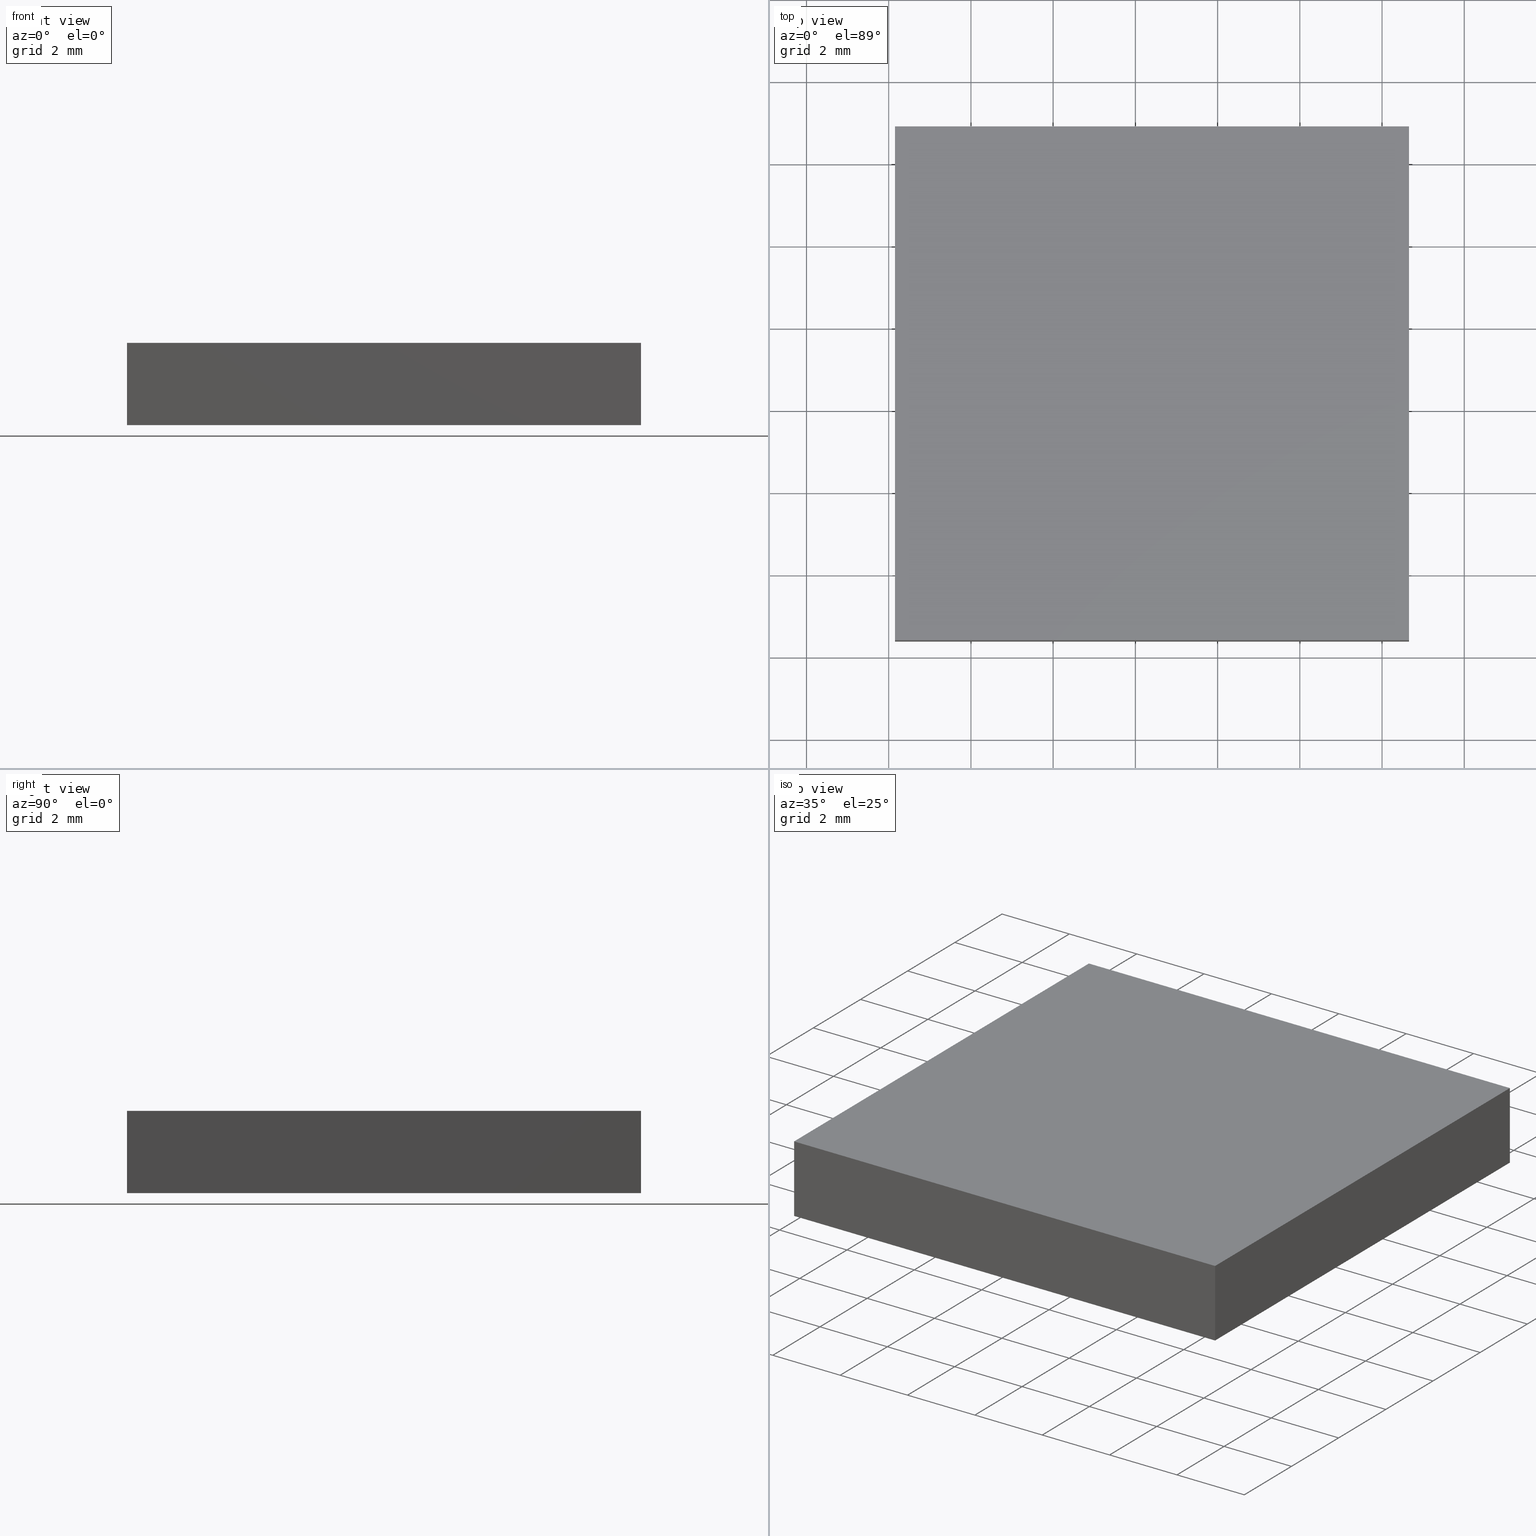
[diagram: canonical four-view strip — front | top / right | iso, engineering-drawing reading convention]
A machine part, canonical four-view strip (front | top / right | iso — engineering-drawing reading convention). The complete STEP part file that produces these views, byte-faithful:
ISO-10303-21;
HEADER;
FILE_DESCRIPTION (( 'STEP AP214' ),
    '1' );
FILE_NAME ('260004.STEP',
    '2019-07-16T02:54:51',
    ( '' ),
    ( '' ),
    'SwSTEP 2.0',
    'SolidWorks 2016',
    '' );
FILE_SCHEMA (( 'AUTOMOTIVE_DESIGN' ));
ENDSEC;

DATA;
#1 = SURFACE_STYLE_USAGE ( .BOTH. , #38 ) ;
#2 = SURFACE_STYLE_USAGE ( .BOTH. , #99 ) ;
#3 = FACE_OUTER_BOUND ( 'NONE', #49, .T. ) ;
#4 = APPLICATION_CONTEXT ( 'automotive_design' ) ;
#5 = ORIENTED_EDGE ( 'NONE', *, *, #198, .T. ) ;
#6 = DIRECTION ( 'NONE',  ( -0.0000000000000000000, -0.0000000000000000000, -1.000000000000000000 ) ) ;
#7 = VECTOR ( 'NONE', #50, 1000.000000000000000 ) ;
#8 = VERTEX_POINT ( 'NONE', #149 ) ;
#9 = PRESENTATION_LAYER_ASSIGNMENT (  '', '', ( #136 ) ) ;
#10 = EDGE_LOOP ( 'NONE', ( #196, #172, #161, #5 ) ) ;
#11 = EDGE_CURVE ( 'NONE', #33, #66, #171, .T. ) ;
#12 = CARTESIAN_POINT ( 'NONE',  ( 104.1543858644214700, 44.89658967450770900, 2.000000000000000000 ) ) ;
#13 = PLANE ( 'NONE',  #105 ) ;
#14 = PLANE ( 'NONE',  #37 ) ;
#15 = CARTESIAN_POINT ( 'NONE',  ( 116.6543858644214900, 44.89658967450770900, 2.000000000000000000 ) ) ;
#16 =( NAMED_UNIT ( * ) PLANE_ANGLE_UNIT ( ) SI_UNIT ( $, .RADIAN. ) );
#17 = ORIENTED_EDGE ( 'NONE', *, *, #26, .F. ) ;
#18 = DIRECTION ( 'NONE',  ( 0.0000000000000000000, 0.0000000000000000000, 1.000000000000000000 ) ) ;
#19 = UNCERTAINTY_MEASURE_WITH_UNIT (LENGTH_MEASURE( 1.000000000000000100E-005 ), #116, 'distance_accuracy_value', 'NONE');
#20 = DIRECTION ( 'NONE',  ( -1.000000000000000000, 0.0000000000000000000, -0.0000000000000000000 ) ) ;
#21 = CARTESIAN_POINT ( 'NONE',  ( 116.6543858644214900, 44.89658967450770900, 0.0000000000000000000 ) ) ;
#22 = ADVANCED_FACE ( 'NONE', ( #122 ), #13, .F. ) ;
#23 = ADVANCED_FACE ( 'NONE', ( #157 ), #14, .F. ) ;
#24 = PRESENTATION_STYLE_ASSIGNMENT (( #2 ) ) ;
#25 = ORIENTED_EDGE ( 'NONE', *, *, #74, .T. ) ;
#26 = EDGE_CURVE ( 'NONE', #60, #8, #41, .T. ) ;
#27 = EDGE_LOOP ( 'NONE', ( #186, #110, #17, #25 ) ) ;
#28 = EDGE_CURVE ( 'NONE', #104, #76, #94, .T. ) ;
#29 = COLOUR_RGB ( '',1.000000000000000000, 1.000000000000000000, 1.000000000000000000 ) ;
#30 = DIRECTION ( 'NONE',  ( -0.0000000000000000000, 1.000000000000000000, -0.0000000000000000000 ) ) ;
#31 = DIRECTION ( 'NONE',  ( -1.000000000000000000, -0.0000000000000000000, -0.0000000000000000000 ) ) ;
#32 = PLANE ( 'NONE',  #169 ) ;
#33 = VERTEX_POINT ( 'NONE', #48 ) ;
#34 = FILL_AREA_STYLE ('',( #91 ) ) ;
#35 = ORIENTED_EDGE ( 'NONE', *, *, #11, .F. ) ;
#36 = DIRECTION ( 'NONE',  ( -1.000000000000000000, 0.0000000000000000000, 0.0000000000000000000 ) ) ;
#37 = AXIS2_PLACEMENT_3D ( 'NONE', #179, #142, #129 ) ;
#38 = SURFACE_SIDE_STYLE ('',( #118 ) ) ;
#39 = AXIS2_PLACEMENT_3D ( 'NONE', #87, #51, #166 ) ;
#40 = EDGE_CURVE ( 'NONE', #8, #104, #43, .T. ) ;
#41 = LINE ( 'NONE', #47, #195 ) ;
#42 = VECTOR ( 'NONE', #167, 1000.000000000000000 ) ;
#43 = LINE ( 'NONE', #146, #79 ) ;
#44 = ORIENTED_EDGE ( 'NONE', *, *, #80, .F. ) ;
#45 = CARTESIAN_POINT ( 'NONE',  ( 116.6543858644214900, 44.89658967450770900, 2.000000000000000000 ) ) ;
#46 = LINE ( 'NONE', #131, #188 ) ;
#47 = CARTESIAN_POINT ( 'NONE',  ( 104.1543858644214700, 32.39658967450770900, 2.000000000000000000 ) ) ;
#48 = CARTESIAN_POINT ( 'NONE',  ( 116.6543858644214900, 32.39658967450770900, 2.000000000000000000 ) ) ;
#49 = EDGE_LOOP ( 'NONE', ( #85, #70, #35, #152 ) ) ;
#50 = DIRECTION ( 'NONE',  ( -1.000000000000000000, -0.0000000000000000000, -0.0000000000000000000 ) ) ;
#51 = DIRECTION ( 'NONE',  ( 0.0000000000000000000, 0.0000000000000000000, 1.000000000000000000 ) ) ;
#52 = APPLICATION_PROTOCOL_DEFINITION ( 'draft international standard', 'automotive_design', 1998, #153 ) ;
#53 = EDGE_CURVE ( 'NONE', #148, #139, #184, .T. ) ;
#54 = CARTESIAN_POINT ( 'NONE',  ( 116.6543858644214900, 44.89658967450770900, 2.000000000000000000 ) ) ;
#55 = LINE ( 'NONE', #84, #134 ) ;
#56 = SHAPE_DEFINITION_REPRESENTATION ( #102, #100 ) ;
#57 = STYLED_ITEM ( 'NONE', ( #173 ), #201 ) ;
#58 = FACE_OUTER_BOUND ( 'NONE', #127, .T. ) ;
#59 = EDGE_CURVE ( 'NONE', #8, #33, #107, .T. ) ;
#60 = VERTEX_POINT ( 'NONE', #202 ) ;
#61 = DIRECTION ( 'NONE',  ( 0.0000000000000000000, 0.0000000000000000000, -1.000000000000000000 ) ) ;
#62 = ORIENTED_EDGE ( 'NONE', *, *, #90, .F. ) ;
#63 = CARTESIAN_POINT ( 'NONE',  ( 116.6543858644214900, 32.39658967450770900, 0.0000000000000000000 ) ) ;
#64 = SURFACE_STYLE_FILL_AREA ( #98 ) ;
#65 = DIRECTION ( 'NONE',  ( 1.000000000000000000, -0.0000000000000000000, -0.0000000000000000000 ) ) ;
#66 = VERTEX_POINT ( 'NONE', #45 ) ;
#67 =( LENGTH_UNIT ( ) NAMED_UNIT ( * ) SI_UNIT ( .MILLI., .METRE. ) );
#68 = CARTESIAN_POINT ( 'NONE',  ( 0.0000000000000000000, 0.0000000000000000000, 0.0000000000000000000 ) ) ;
#69 = PRESENTATION_LAYER_ASSIGNMENT (  '', '', ( #57 ) ) ;
#70 = ORIENTED_EDGE ( 'NONE', *, *, #125, .F. ) ;
#71 =( NAMED_UNIT ( * ) PLANE_ANGLE_UNIT ( ) SI_UNIT ( $, .RADIAN. ) );
#72 = ADVANCED_FACE ( 'NONE', ( #114 ), #32, .F. ) ;
#73 = PLANE ( 'NONE',  #158 ) ;
#74 = EDGE_CURVE ( 'NONE', #60, #139, #55, .T. ) ;
#75 =( GEOMETRIC_REPRESENTATION_CONTEXT ( 3 ) GLOBAL_UNCERTAINTY_ASSIGNED_CONTEXT ( ( #108 ) ) GLOBAL_UNIT_ASSIGNED_CONTEXT ( ( #67, #180, #86 ) ) REPRESENTATION_CONTEXT ( 'NONE', 'WORKASPACE' ) );
#76 = VERTEX_POINT ( 'NONE', #63 ) ;
#77 =( GEOMETRIC_REPRESENTATION_CONTEXT ( 3 ) GLOBAL_UNCERTAINTY_ASSIGNED_CONTEXT ( ( #159 ) ) GLOBAL_UNIT_ASSIGNED_CONTEXT ( ( #115, #16, #130 ) ) REPRESENTATION_CONTEXT ( 'NONE', 'WORKASPACE' ) );
#78 = LINE ( 'NONE', #147, #160 ) ;
#79 = VECTOR ( 'NONE', #175, 1000.000000000000000 ) ;
#80 = EDGE_CURVE ( 'NONE', #139, #104, #78, .T. ) ;
#81 = FACE_OUTER_BOUND ( 'NONE', #113, .T. ) ;
#82 = CARTESIAN_POINT ( 'NONE',  ( 104.1543858644214700, 44.89658967450770900, 0.0000000000000000000 ) ) ;
#83 = CARTESIAN_POINT ( 'NONE',  ( 104.1543858644214700, 38.64658967450770900, 2.000000000000000000 ) ) ;
#84 = CARTESIAN_POINT ( 'NONE',  ( 104.1543858644214700, 44.89658967450770900, 2.000000000000000000 ) ) ;
#85 = ORIENTED_EDGE ( 'NONE', *, *, #191, .T. ) ;
#86 =( NAMED_UNIT ( * ) SI_UNIT ( $, .STERADIAN. ) SOLID_ANGLE_UNIT ( ) );
#87 = CARTESIAN_POINT ( 'NONE',  ( 0.0000000000000000000, 0.0000000000000000000, 0.0000000000000000000 ) ) ;
#88 = DIRECTION ( 'NONE',  ( 0.0000000000000000000, 0.0000000000000000000, -1.000000000000000000 ) ) ;
#89 = CARTESIAN_POINT ( 'NONE',  ( 116.6543858644214900, 44.89658967450770900, 0.0000000000000000000 ) ) ;
#90 = EDGE_CURVE ( 'NONE', #33, #76, #46, .T. ) ;
#91 = FILL_AREA_STYLE_COLOUR ( '', #29 ) ;
#92 = PRODUCT ( '260004', '260004', '', ( #190 ) ) ;
#93 = MECHANICAL_DESIGN_GEOMETRIC_PRESENTATION_REPRESENTATION (  '', ( #57 ), #77 ) ;
#94 = LINE ( 'NONE', #162, #143 ) ;
#95 = DIRECTION ( 'NONE',  ( -0.0000000000000000000, -1.000000000000000000, -0.0000000000000000000 ) ) ;
#96 = PRODUCT_DEFINITION ( 'δ֪', '', #177, #187 ) ;
#97 = DIRECTION ( 'NONE',  ( 1.000000000000000000, -0.0000000000000000000, -0.0000000000000000000 ) ) ;
#98 = FILL_AREA_STYLE ('',( #181 ) ) ;
#99 = SURFACE_SIDE_STYLE ('',( #64 ) ) ;
#100 = ADVANCED_BREP_SHAPE_REPRESENTATION ( '260004', ( #201, #39 ), #75 ) ;
#101 = CARTESIAN_POINT ( 'NONE',  ( 116.6543858644214900, 44.89658967450770900, 2.000000000000000000 ) ) ;
#102 = PRODUCT_DEFINITION_SHAPE ( 'NONE', 'NONE',  #96 ) ;
#103 = ADVANCED_FACE ( 'NONE', ( #58 ), #154, .T. ) ;
#104 = VERTEX_POINT ( 'NONE', #117 ) ;
#105 = AXIS2_PLACEMENT_3D ( 'NONE', #83, #128, #61 ) ;
#106 = ORIENTED_EDGE ( 'NONE', *, *, #28, .T. ) ;
#107 = LINE ( 'NONE', #112, #176 ) ;
#108 = UNCERTAINTY_MEASURE_WITH_UNIT (LENGTH_MEASURE( 1.000000000000000100E-005 ), #67, 'distance_accuracy_value', 'NONE');
#109 =( GEOMETRIC_REPRESENTATION_CONTEXT ( 3 ) GLOBAL_UNCERTAINTY_ASSIGNED_CONTEXT ( ( #19 ) ) GLOBAL_UNIT_ASSIGNED_CONTEXT ( ( #116, #71, #163 ) ) REPRESENTATION_CONTEXT ( 'NONE', 'WORKASPACE' ) );
#110 = ORIENTED_EDGE ( 'NONE', *, *, #40, .F. ) ;
#111 = LINE ( 'NONE', #21, #124 ) ;
#112 = CARTESIAN_POINT ( 'NONE',  ( 116.6543858644214900, 32.39658967450770900, 2.000000000000000000 ) ) ;
#113 = EDGE_LOOP ( 'NONE', ( #106, #62, #170, #156 ) ) ;
#114 = FACE_OUTER_BOUND ( 'NONE', #135, .T. ) ;
#115 =( LENGTH_UNIT ( ) NAMED_UNIT ( * ) SI_UNIT ( .MILLI., .METRE. ) );
#116 =( LENGTH_UNIT ( ) NAMED_UNIT ( * ) SI_UNIT ( .MILLI., .METRE. ) );
#117 = CARTESIAN_POINT ( 'NONE',  ( 104.1543858644214700, 32.39658967450770900, 0.0000000000000000000 ) ) ;
#118 = SURFACE_STYLE_FILL_AREA ( #34 ) ;
#119 = DIRECTION ( 'NONE',  ( 0.0000000000000000000, 1.000000000000000000, -0.0000000000000000000 ) ) ;
#120 = ADVANCED_FACE ( 'NONE', ( #3 ), #73, .F. ) ;
#121 = DIRECTION ( 'NONE',  ( 0.0000000000000000000, 0.0000000000000000000, 1.000000000000000000 ) ) ;
#122 = FACE_OUTER_BOUND ( 'NONE', #27, .T. ) ;
#123 = ORIENTED_EDGE ( 'NONE', *, *, #191, .F. ) ;
#124 = VECTOR ( 'NONE', #193, 1000.000000000000000 ) ;
#125 = EDGE_CURVE ( 'NONE', #66, #148, #164, .T. ) ;
#126 = MECHANICAL_DESIGN_GEOMETRIC_PRESENTATION_REPRESENTATION (  '', ( #136 ), #109 ) ;
#127 = EDGE_LOOP ( 'NONE', ( #200, #44, #140, #123 ) ) ;
#128 = DIRECTION ( 'NONE',  ( 1.000000000000000000, 0.0000000000000000000, 0.0000000000000000000 ) ) ;
#129 = DIRECTION ( 'NONE',  ( -1.000000000000000000, 0.0000000000000000000, -0.0000000000000000000 ) ) ;
#130 =( NAMED_UNIT ( * ) SI_UNIT ( $, .STERADIAN. ) SOLID_ANGLE_UNIT ( ) );
#131 = CARTESIAN_POINT ( 'NONE',  ( 116.6543858644214900, 32.39658967450770900, 2.000000000000000000 ) ) ;
#132 = PLANE ( 'NONE',  #141 ) ;
#133 = CARTESIAN_POINT ( 'NONE',  ( 104.1543858644214700, 44.89658967450770900, 0.0000000000000000000 ) ) ;
#134 = VECTOR ( 'NONE', #182, 1000.000000000000000 ) ;
#135 = EDGE_LOOP ( 'NONE', ( #145, #150, #185, #137 ) ) ;
#136 = STYLED_ITEM ( 'NONE', ( #24 ), #100 ) ;
#137 = ORIENTED_EDGE ( 'NONE', *, *, #125, .T. ) ;
#138 = COLOUR_RGB ( '',1.000000000000000000, 1.000000000000000000, 1.000000000000000000 ) ;
#139 = VERTEX_POINT ( 'NONE', #133 ) ;
#140 = ORIENTED_EDGE ( 'NONE', *, *, #53, .F. ) ;
#141 = AXIS2_PLACEMENT_3D ( 'NONE', #151, #119, #121 ) ;
#142 = DIRECTION ( 'NONE',  ( 0.0000000000000000000, 0.0000000000000000000, -1.000000000000000000 ) ) ;
#143 = VECTOR ( 'NONE', #65, 1000.000000000000000 ) ;
#144 = DIRECTION ( 'NONE',  ( 0.0000000000000000000, -1.000000000000000000, 0.0000000000000000000 ) ) ;
#145 = ORIENTED_EDGE ( 'NONE', *, *, #53, .T. ) ;
#146 = CARTESIAN_POINT ( 'NONE',  ( 104.1543858644214700, 32.39658967450770900, 2.000000000000000000 ) ) ;
#147 = CARTESIAN_POINT ( 'NONE',  ( 104.1543858644214700, 38.64658967450770900, 0.0000000000000000000 ) ) ;
#148 = VERTEX_POINT ( 'NONE', #89 ) ;
#149 = CARTESIAN_POINT ( 'NONE',  ( 104.1543858644214700, 32.39658967450770900, 2.000000000000000000 ) ) ;
#150 = ORIENTED_EDGE ( 'NONE', *, *, #74, .F. ) ;
#151 = CARTESIAN_POINT ( 'NONE',  ( 116.6543858644214900, 32.39658967450770900, 2.000000000000000000 ) ) ;
#152 = ORIENTED_EDGE ( 'NONE', *, *, #90, .T. ) ;
#153 = APPLICATION_CONTEXT ( 'automotive_design' ) ;
#154 = PLANE ( 'NONE',  #174 ) ;
#155 = PRODUCT_RELATED_PRODUCT_CATEGORY ( 'part', '', ( #92 ) ) ;
#156 = ORIENTED_EDGE ( 'NONE', *, *, #40, .T. ) ;
#157 = FACE_OUTER_BOUND ( 'NONE', #10, .T. ) ;
#158 = AXIS2_PLACEMENT_3D ( 'NONE', #54, #36, #18 ) ;
#159 = UNCERTAINTY_MEASURE_WITH_UNIT (LENGTH_MEASURE( 1.000000000000000100E-005 ), #115, 'distance_accuracy_value', 'NONE');
#160 = VECTOR ( 'NONE', #183, 1000.000000000000000 ) ;
#161 = ORIENTED_EDGE ( 'NONE', *, *, #11, .T. ) ;
#162 = CARTESIAN_POINT ( 'NONE',  ( 116.6543858644214900, 32.39658967450770900, 0.0000000000000000000 ) ) ;
#163 =( NAMED_UNIT ( * ) SI_UNIT ( $, .STERADIAN. ) SOLID_ANGLE_UNIT ( ) );
#164 = LINE ( 'NONE', #101, #42 ) ;
#165 = APPLICATION_PROTOCOL_DEFINITION ( 'draft international standard', 'automotive_design', 1998, #4 ) ;
#166 = DIRECTION ( 'NONE',  ( 1.000000000000000000, 0.0000000000000000000, 0.0000000000000000000 ) ) ;
#167 = DIRECTION ( 'NONE',  ( -0.0000000000000000000, -0.0000000000000000000, -1.000000000000000000 ) ) ;
#168 = VECTOR ( 'NONE', #30, 1000.000000000000000 ) ;
#169 = AXIS2_PLACEMENT_3D ( 'NONE', #12, #144, #178 ) ;
#170 = ORIENTED_EDGE ( 'NONE', *, *, #59, .F. ) ;
#171 = LINE ( 'NONE', #15, #168 ) ;
#172 = ORIENTED_EDGE ( 'NONE', *, *, #59, .T. ) ;
#173 = PRESENTATION_STYLE_ASSIGNMENT (( #1 ) ) ;
#174 = AXIS2_PLACEMENT_3D ( 'NONE', #68, #88, #20 ) ;
#175 = DIRECTION ( 'NONE',  ( -0.0000000000000000000, -0.0000000000000000000, -1.000000000000000000 ) ) ;
#176 = VECTOR ( 'NONE', #97, 1000.000000000000000 ) ;
#177 = PRODUCT_DEFINITION_FORMATION_WITH_SPECIFIED_SOURCE ( '�κ�', '', #92, .NOT_KNOWN. ) ;
#178 = DIRECTION ( 'NONE',  ( 0.0000000000000000000, -0.0000000000000000000, -1.000000000000000000 ) ) ;
#179 = CARTESIAN_POINT ( 'NONE',  ( 0.0000000000000000000, 0.0000000000000000000, 2.000000000000000000 ) ) ;
#180 =( NAMED_UNIT ( * ) PLANE_ANGLE_UNIT ( ) SI_UNIT ( $, .RADIAN. ) );
#181 = FILL_AREA_STYLE_COLOUR ( '', #138 ) ;
#182 = DIRECTION ( 'NONE',  ( -0.0000000000000000000, -0.0000000000000000000, -1.000000000000000000 ) ) ;
#183 = DIRECTION ( 'NONE',  ( -0.0000000000000000000, -1.000000000000000000, -0.0000000000000000000 ) ) ;
#184 = LINE ( 'NONE', #82, #197 ) ;
#185 = ORIENTED_EDGE ( 'NONE', *, *, #198, .F. ) ;
#186 = ORIENTED_EDGE ( 'NONE', *, *, #80, .T. ) ;
#187 = PRODUCT_DEFINITION_CONTEXT ( 'detailed design', #153, 'design' ) ;
#188 = VECTOR ( 'NONE', #6, 1000.000000000000000 ) ;
#189 = CARTESIAN_POINT ( 'NONE',  ( 104.1543858644214700, 44.89658967450770900, 2.000000000000000000 ) ) ;
#190 = PRODUCT_CONTEXT ( 'NONE', #4, 'mechanical' ) ;
#191 = EDGE_CURVE ( 'NONE', #76, #148, #111, .T. ) ;
#192 = ADVANCED_FACE ( 'NONE', ( #81 ), #132, .F. ) ;
#193 = DIRECTION ( 'NONE',  ( -0.0000000000000000000, 1.000000000000000000, -0.0000000000000000000 ) ) ;
#194 = CLOSED_SHELL ( 'NONE', ( #192, #120, #72, #22, #23, #103 ) ) ;
#195 = VECTOR ( 'NONE', #95, 1000.000000000000000 ) ;
#196 = ORIENTED_EDGE ( 'NONE', *, *, #26, .T. ) ;
#197 = VECTOR ( 'NONE', #31, 1000.000000000000000 ) ;
#198 = EDGE_CURVE ( 'NONE', #66, #60, #199, .T. ) ;
#199 = LINE ( 'NONE', #189, #7 ) ;
#200 = ORIENTED_EDGE ( 'NONE', *, *, #28, .F. ) ;
#201 = MANIFOLD_SOLID_BREP ( '͹̨-����1', #194 ) ;
#202 = CARTESIAN_POINT ( 'NONE',  ( 104.1543858644214700, 44.89658967450770900, 2.000000000000000000 ) ) ;
ENDSEC;
END-ISO-10303-21;
